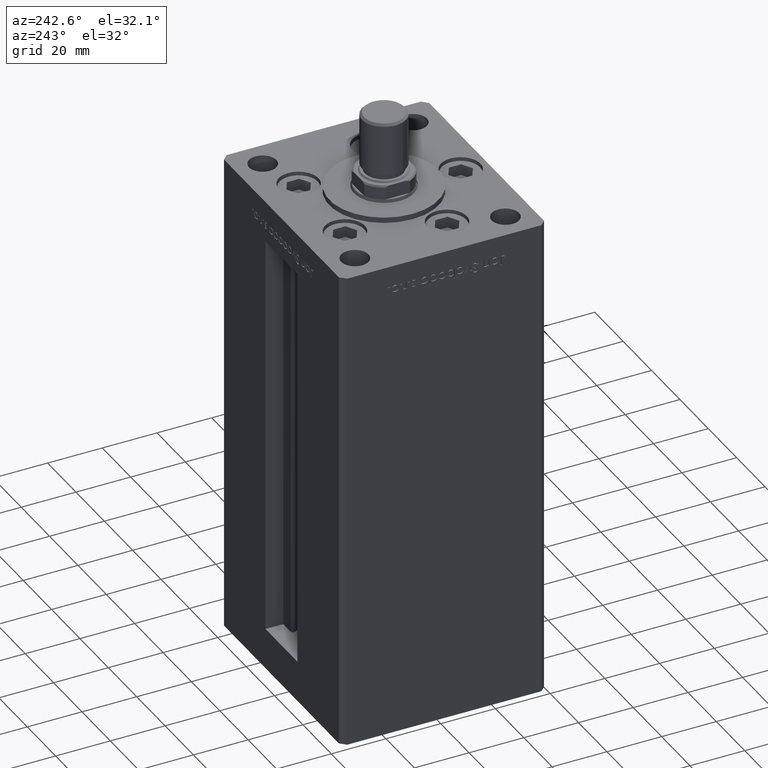
[diagram: clean part render]
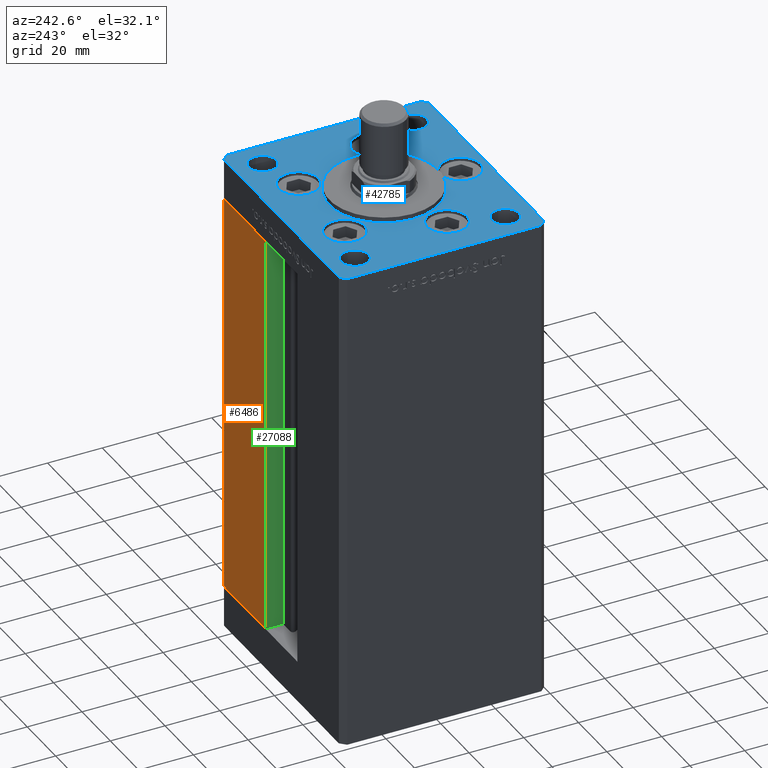
[diagram: same view with three faces highlighted in distinct colors, each labeled with its STEP entity id]
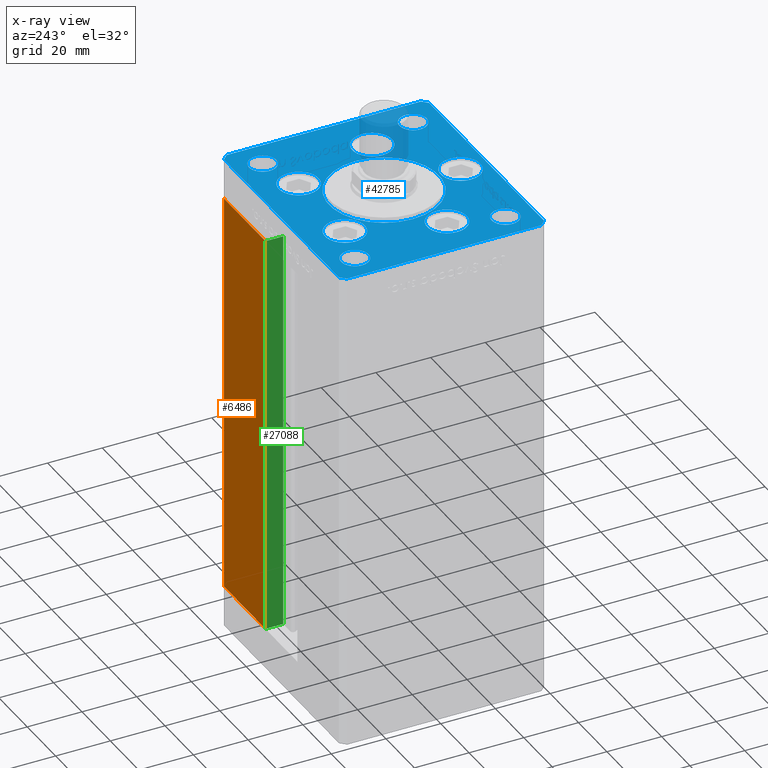
[diagram: x-ray of the same camera — body ghosted, the three highlighted faces saturated]
A machine part, auxiliary view with three faces highlighted in distinct colors.
The next image is the same camera in x-ray (body ghosted, the three faces saturated) — at least one of them is partly hidden behind the body in this view.
Their STEP definitions:

[orange] entity #6486 — the highlighted planar face has unit normal (-0, -1, 0).
#2275 = DIRECTION ( 'NONE',  ( -0.000000000000000000, -0.000000000000000000, 1.000000000000000000 ) ) ;
#4044 = EDGE_LOOP ( 'NONE', ( #22441, #31251, #8030, #20036 ) ) ;
#4202 = EDGE_CURVE ( 'NONE', #7775, #49824, #32614, .T. ) ;
#5462 = DIRECTION ( 'NONE',  ( -2.372271420139223331E-16, -1.000000000000000000, 0.000000000000000000 ) ) ;
#5682 = CARTESIAN_POINT ( 'NONE',  ( 40.50000000000000000, 37.50000000000000711, 148.5000000000000000 ) ) ;
#6486 = ADVANCED_FACE ( 'NONE', ( #13407 ), #25317, .F. ) ;
#7297 = EDGE_CURVE ( 'NONE', #24722, #7775, #32069, .T. ) ;
#7775 = VERTEX_POINT ( 'NONE', #5682 ) ;
#8030 = ORIENTED_EDGE ( 'NONE', *, *, #7297, .T. ) ;
#13055 = VERTEX_POINT ( 'NONE', #41817 ) ;
#13407 = FACE_OUTER_BOUND ( 'NONE', #4044, .T. ) ;
#13665 = DIRECTION ( 'NONE',  ( 1.000000000000000000, -2.372271420139223331E-16, 0.000000000000000000 ) ) ;
#13848 = CARTESIAN_POINT ( 'NONE',  ( 11.24999999999999289, 37.50000000000000000, 148.5000000000000000 ) ) ;
#18663 = DIRECTION ( 'NONE',  ( -1.000000000000000000, 2.372271420139223331E-16, 0.000000000000000000 ) ) ;
#20036 = ORIENTED_EDGE ( 'NONE', *, *, #4202, .T. ) ;
#22411 = CARTESIAN_POINT ( 'NONE',  ( 11.25000000000000000, 37.50000000000000000, 0.000000000000000000 ) ) ;
#22441 = ORIENTED_EDGE ( 'NONE', *, *, #26802, .T. ) ;
#24722 = VERTEX_POINT ( 'NONE', #13848 ) ;
#25317 = PLANE ( 'NONE',  #32349 ) ;
#26802 = EDGE_CURVE ( 'NONE', #49824, #13055, #34564, .T. ) ;
#27751 = VECTOR ( 'NONE', #2275, 1000.000000000000000 ) ;
#29812 = CARTESIAN_POINT ( 'NONE',  ( -11.25000000000000000, 37.50000000000000000, 148.5000000000000000 ) ) ;
#30585 = CARTESIAN_POINT ( 'NONE',  ( -11.25000000000000000, 37.50000000000000000, 0.000000000000000000 ) ) ;
#31251 = ORIENTED_EDGE ( 'NONE', *, *, #43609, .T. ) ;
#32069 = LINE ( 'NONE', #47989, #42523 ) ;
#32349 = AXIS2_PLACEMENT_3D ( 'NONE', #29812, #5462, #13665 ) ;
#32447 = VECTOR ( 'NONE', #18663, 1000.000000000000000 ) ;
#32614 = LINE ( 'NONE', #44803, #42452 ) ;
#34054 = CARTESIAN_POINT ( 'NONE',  ( 40.50000000000000000, 37.50000000000000711, 0.000000000000000000 ) ) ;
#34564 = LINE ( 'NONE', #30585, #32447 ) ;
#35524 = DIRECTION ( 'NONE',  ( 1.000000000000000000, 0.000000000000000000, 0.000000000000000000 ) ) ;
#41817 = CARTESIAN_POINT ( 'NONE',  ( 11.25000000000000000, 37.50000000000000000, 0.000000000000000000 ) ) ;
#42452 = VECTOR ( 'NONE', #45317, 1000.000000000000000 ) ;
#42523 = VECTOR ( 'NONE', #35524, 1000.000000000000000 ) ;
#42552 = LINE ( 'NONE', #22411, #27751 ) ;
#43609 = EDGE_CURVE ( 'NONE', #13055, #24722, #42552, .T. ) ;
#44803 = CARTESIAN_POINT ( 'NONE',  ( 40.50000000000000000, 37.50000000000000711, 148.5000000000000000 ) ) ;
#45317 = DIRECTION ( 'NONE',  ( -0.000000000000000000, -0.000000000000000000, -1.000000000000000000 ) ) ;
#47989 = CARTESIAN_POINT ( 'NONE',  ( -11.25000000000000000, 37.50000000000000000, 148.5000000000000000 ) ) ;
#49824 = VERTEX_POINT ( 'NONE', #34054 ) ;

[blue] entity #42785 — the highlighted planar face has unit normal (0, 0, 1).
#200 = CIRCLE ( 'NONE', #17097, 7.249999999999999112 ) ;
#381 = CARTESIAN_POINT ( 'NONE',  ( -16.32291334290544071, 22.74999999999999289, 0.000000000000000000 ) ) ;
#516 = CARTESIAN_POINT ( 'NONE',  ( 0.000000000000000000, -6.938893903907228378E-15, 0.000000000000000000 ) ) ;
#998 = VERTEX_POINT ( 'NONE', #34252 ) ;
#1085 = LINE ( 'NONE', #8524, #43696 ) ;
#1088 = VERTEX_POINT ( 'NONE', #2986 ) ;
#1139 = VERTEX_POINT ( 'NONE', #39031 ) ;
#1363 = AXIS2_PLACEMENT_3D ( 'NONE', #17106, #5182, #32752 ) ;
#1454 = CARTESIAN_POINT ( 'NONE',  ( 26.39865316429777664, -9.333333333333330373, 0.000000000000000000 ) ) ;
#1745 = PLANE ( 'NONE',  #22644 ) ;
#1771 = VERTEX_POINT ( 'NONE', #8212 ) ;
#1796 = EDGE_LOOP ( 'NONE', ( #32405, #25968 ) ) ;
#1950 = CARTESIAN_POINT ( 'NONE',  ( -23.57291334290544071, 22.74999999999999289, 0.000000000000000000 ) ) ;
#2067 = VECTOR ( 'NONE', #21119, 1000.000000000000000 ) ;
#2180 = EDGE_LOOP ( 'NONE', ( #8758, #39335 ) ) ;
#2248 = CARTESIAN_POINT ( 'NONE',  ( 32.50000000000000000, -27.50000000000000355, 0.000000000000000000 ) ) ;
#2356 = DIRECTION ( 'NONE',  ( 9.773090005503145261E-17, 1.000000000000000000, 0.000000000000000000 ) ) ;
#2363 = VERTEX_POINT ( 'NONE', #23719 ) ;
#2485 = DIRECTION ( 'NONE',  ( 1.000000000000000000, 0.000000000000000000, 0.000000000000000000 ) ) ;
#2877 = VECTOR ( 'NONE', #2356, 1000.000000000000000 ) ;
#2986 = CARTESIAN_POINT ( 'NONE',  ( 40.50000000000000711, 37.50000000000000711, 0.000000000000000000 ) ) ;
#3306 = DIRECTION ( 'NONE',  ( -0.000000000000000000, -0.000000000000000000, -1.000000000000000000 ) ) ;
#3789 = AXIS2_PLACEMENT_3D ( 'NONE', #7463, #51989, #7725 ) ;
#3834 = CARTESIAN_POINT ( 'NONE',  ( -32.50000000000000000, 27.50000000000000711, 0.000000000000000000 ) ) ;
#3999 = EDGE_CURVE ( 'NONE', #51469, #2363, #33967, .T. ) ;
#5182 = DIRECTION ( 'NONE',  ( 0.000000000000000000, 0.000000000000000000, 1.000000000000000000 ) ) ;
#5626 = ORIENTED_EDGE ( 'NONE', *, *, #7641, .F. ) ;
#5695 = CARTESIAN_POINT ( 'NONE',  ( -20.00000000000000000, -6.938893903907228378E-15, 0.000000000000000000 ) ) ;
#5984 = FACE_BOUND ( 'NONE', #36809, .T. ) ;
#6230 = DIRECTION ( 'NONE',  ( -0.000000000000000000, -0.000000000000000000, -1.000000000000000000 ) ) ;
#6309 = CARTESIAN_POINT ( 'NONE',  ( -19.14865316429777664, -9.333333333333330373, 0.000000000000000000 ) ) ;
#6428 = EDGE_CURVE ( 'NONE', #1771, #29727, #200, .T. ) ;
#6498 = DIRECTION ( 'NONE',  ( -1.000000000000000000, 0.000000000000000000, 0.000000000000000000 ) ) ;
#6512 = CARTESIAN_POINT ( 'NONE',  ( 0.000000000000000000, -28.00000000000000000, 0.000000000000000000 ) ) ;
#6874 = CARTESIAN_POINT ( 'NONE',  ( -27.50000000000000000, -27.50000000000000355, 0.000000000000000000 ) ) ;
#7203 = AXIS2_PLACEMENT_3D ( 'NONE', #30839, #10190, #2485 ) ;
#7463 = CARTESIAN_POINT ( 'NONE',  ( -26.39865316429777664, -9.333333333333330373, 0.000000000000000000 ) ) ;
#7641 = EDGE_CURVE ( 'NONE', #12027, #44356, #42555, .T. ) ;
#7725 = DIRECTION ( 'NONE',  ( 1.000000000000000000, 0.000000000000000000, 0.000000000000000000 ) ) ;
#8141 = CIRCLE ( 'NONE', #1363, 4.999999999999997335 ) ;
#8210 = EDGE_LOOP ( 'NONE', ( #30578, #50679 ) ) ;
#8212 = CARTESIAN_POINT ( 'NONE',  ( 23.57291334290544071, 22.74999999999999289, 0.000000000000000000 ) ) ;
#8334 = DIRECTION ( 'NONE',  ( 0.000000000000000000, 0.000000000000000000, 1.000000000000000000 ) ) ;
#8381 = CARTESIAN_POINT ( 'NONE',  ( 42.50000000000001421, 35.50000000000002132, 0.000000000000000000 ) ) ;
#8438 = EDGE_CURVE ( 'NONE', #39603, #36398, #40241, .T. ) ;
#8524 = CARTESIAN_POINT ( 'NONE',  ( 40.50000000000001421, -37.49999999999992184, 0.000000000000000000 ) ) ;
#8758 = ORIENTED_EDGE ( 'NONE', *, *, #40554, .F. ) ;
#8939 = LINE ( 'NONE', #49481, #15630 ) ;
#9151 = EDGE_LOOP ( 'NONE', ( #51401, #45392 ) ) ;
#9294 = VERTEX_POINT ( 'NONE', #43168 ) ;
#9590 = DIRECTION ( 'NONE',  ( 1.000000000000000000, 0.000000000000000000, 0.000000000000000000 ) ) ;
#9748 = ORIENTED_EDGE ( 'NONE', *, *, #21694, .T. ) ;
#9881 = AXIS2_PLACEMENT_3D ( 'NONE', #516, #16665, #49003 ) ;
#9978 = AXIS2_PLACEMENT_3D ( 'NONE', #29199, #49617, #9590 ) ;
#10190 = DIRECTION ( 'NONE',  ( 0.000000000000000000, 0.000000000000000000, 1.000000000000000000 ) ) ;
#10850 = CARTESIAN_POINT ( 'NONE',  ( -42.50000000000000711, 35.50000000000000000, 0.000000000000000000 ) ) ;
#10860 = CARTESIAN_POINT ( 'NONE',  ( 40.50000000000001421, -37.49999999999992184, 0.000000000000000000 ) ) ;
#11193 = DIRECTION ( 'NONE',  ( -1.000000000000000000, 0.000000000000000000, 0.000000000000000000 ) ) ;
#11308 = ORIENTED_EDGE ( 'NONE', *, *, #8438, .T. ) ;
#11312 = CARTESIAN_POINT ( 'NONE',  ( -7.250000000000000000, -28.00000000000000000, 0.000000000000000000 ) ) ;
#11697 = EDGE_CURVE ( 'NONE', #22509, #25471, #47157, .T. ) ;
#11707 = CARTESIAN_POINT ( 'NONE',  ( -27.50000000000000000, 27.50000000000000711, 0.000000000000000000 ) ) ;
#11936 = CARTESIAN_POINT ( 'NONE',  ( 7.250000000000000000, -28.00000000000000000, 0.000000000000000000 ) ) ;
#11969 = DIRECTION ( 'NONE',  ( 1.000000000000000000, 0.000000000000000000, 0.000000000000000000 ) ) ;
#11988 = ORIENTED_EDGE ( 'NONE', *, *, #49820, .F. ) ;
#12005 = ORIENTED_EDGE ( 'NONE', *, *, #50111, .T. ) ;
#12027 = VERTEX_POINT ( 'NONE', #17939 ) ;
#12493 = ORIENTED_EDGE ( 'NONE', *, *, #17836, .F. ) ;
#12599 = VERTEX_POINT ( 'NONE', #15228 ) ;
#13046 = VERTEX_POINT ( 'NONE', #6309 ) ;
#13057 = CIRCLE ( 'NONE', #7203, 7.249999999999999112 ) ;
#13135 = CARTESIAN_POINT ( 'NONE',  ( 27.50000000000000355, -27.50000000000000355, 0.000000000000000000 ) ) ;
#13224 = CARTESIAN_POINT ( 'NONE',  ( 40.50000000000000711, 37.50000000000000711, 0.000000000000000000 ) ) ;
#13652 = EDGE_CURVE ( 'NONE', #21371, #22661, #23239, .T. ) ;
#13766 = CARTESIAN_POINT ( 'NONE',  ( 42.50000000000000711, -35.49999999999992895, 0.000000000000000000 ) ) ;
#14090 = CARTESIAN_POINT ( 'NONE',  ( -40.50000000000000711, -37.50000000000003553, 0.000000000000000000 ) ) ;
#14111 = AXIS2_PLACEMENT_3D ( 'NONE', #49916, #21280, #29497 ) ;
#14196 = FACE_OUTER_BOUND ( 'NONE', #23371, .T. ) ;
#15210 = DIRECTION ( 'NONE',  ( 0.000000000000000000, 0.000000000000000000, 1.000000000000000000 ) ) ;
#15228 = CARTESIAN_POINT ( 'NONE',  ( -37.50000000000000711, 27.50000000000000711, 0.000000000000000000 ) ) ;
#15630 = VECTOR ( 'NONE', #21647, 1000.000000000000000 ) ;
#15816 = CIRCLE ( 'NONE', #9881, 20.00000000000000000 ) ;
#16022 = DIRECTION ( 'NONE',  ( -0.000000000000000000, -0.000000000000000000, -1.000000000000000000 ) ) ;
#16176 = EDGE_LOOP ( 'NONE', ( #42643, #18393 ) ) ;
#16198 = ORIENTED_EDGE ( 'NONE', *, *, #11697, .T. ) ;
#16518 = ORIENTED_EDGE ( 'NONE', *, *, #25653, .T. ) ;
#16559 = DIRECTION ( 'NONE',  ( 1.000000000000000000, 0.000000000000000000, 0.000000000000000000 ) ) ;
#16665 = DIRECTION ( 'NONE',  ( 0.000000000000000000, 0.000000000000000000, 1.000000000000000000 ) ) ;
#16806 = DIRECTION ( 'NONE',  ( 1.000000000000000000, 0.000000000000000000, 0.000000000000000000 ) ) ;
#17097 = AXIS2_PLACEMENT_3D ( 'NONE', #20308, #24544, #45470 ) ;
#17106 = CARTESIAN_POINT ( 'NONE',  ( 32.50000000000000000, 27.49999999999999645, 0.000000000000000000 ) ) ;
#17246 = DIRECTION ( 'NONE',  ( 0.7071067811865474617, 0.7071067811865474617, 0.000000000000000000 ) ) ;
#17290 = CARTESIAN_POINT ( 'NONE',  ( -42.50000000000000000, -35.50000000000004263, 0.000000000000000000 ) ) ;
#17521 = EDGE_CURVE ( 'NONE', #25471, #1088, #8939, .T. ) ;
#17610 = DIRECTION ( 'NONE',  ( 0.000000000000000000, 0.000000000000000000, 1.000000000000000000 ) ) ;
#17836 = EDGE_CURVE ( 'NONE', #2363, #51469, #31698, .T. ) ;
#17930 = EDGE_CURVE ( 'NONE', #13046, #34501, #13057, .T. ) ;
#17939 = CARTESIAN_POINT ( 'NONE',  ( 37.50000000000000000, 27.49999999999999645, 0.000000000000000000 ) ) ;
#18165 = FACE_BOUND ( 'NONE', #2180, .T. ) ;
#18190 = VERTEX_POINT ( 'NONE', #17290 ) ;
#18393 = ORIENTED_EDGE ( 'NONE', *, *, #19016, .F. ) ;
#18531 = EDGE_LOOP ( 'NONE', ( #5626, #46844 ) ) ;
#18655 = CARTESIAN_POINT ( 'NONE',  ( -32.50000000000000000, -27.50000000000000355, 0.000000000000000000 ) ) ;
#18819 = EDGE_CURVE ( 'NONE', #35295, #44625, #19860, .T. ) ;
#19016 = EDGE_CURVE ( 'NONE', #34501, #13046, #47836, .T. ) ;
#19114 = CARTESIAN_POINT ( 'NONE',  ( -9.072913342905442491, 22.74999999999999289, 0.000000000000000000 ) ) ;
#19505 = DIRECTION ( 'NONE',  ( 0.000000000000000000, 0.000000000000000000, 1.000000000000000000 ) ) ;
#19860 = CIRCLE ( 'NONE', #25787, 7.250000000000000000 ) ;
#20014 = CARTESIAN_POINT ( 'NONE',  ( 32.50000000000000000, 27.49999999999999645, 0.000000000000000000 ) ) ;
#20308 = CARTESIAN_POINT ( 'NONE',  ( 16.32291334290544071, 22.74999999999999289, 0.000000000000000000 ) ) ;
#20527 = CARTESIAN_POINT ( 'NONE',  ( 26.39865316429777664, -9.333333333333330373, 0.000000000000000000 ) ) ;
#20813 = EDGE_LOOP ( 'NONE', ( #16518, #12005 ) ) ;
#21006 = CIRCLE ( 'NONE', #21122, 5.000000000000004441 ) ;
#21119 = DIRECTION ( 'NONE',  ( 0.7071067811865487940, -0.7071067811865463515, 0.000000000000000000 ) ) ;
#21122 = AXIS2_PLACEMENT_3D ( 'NONE', #3834, #3306, #27952 ) ;
#21280 = DIRECTION ( 'NONE',  ( 0.000000000000000000, 0.000000000000000000, 1.000000000000000000 ) ) ;
#21365 = AXIS2_PLACEMENT_3D ( 'NONE', #20014, #48119, #16806 ) ;
#21371 = VERTEX_POINT ( 'NONE', #1950 ) ;
#21634 = VECTOR ( 'NONE', #33697, 1000.000000000000000 ) ;
#21647 = DIRECTION ( 'NONE',  ( -0.7071067811865524577, 0.7071067811865426878, 0.000000000000000000 ) ) ;
#21694 = EDGE_CURVE ( 'NONE', #1139, #24263, #26002, .T. ) ;
#22139 = FACE_BOUND ( 'NONE', #18531, .T. ) ;
#22509 = VERTEX_POINT ( 'NONE', #25487 ) ;
#22644 = AXIS2_PLACEMENT_3D ( 'NONE', #30343, #42545, #46798 ) ;
#22661 = VERTEX_POINT ( 'NONE', #19114 ) ;
#23022 = LINE ( 'NONE', #10850, #42707 ) ;
#23235 = AXIS2_PLACEMENT_3D ( 'NONE', #1454, #17610, #41987 ) ;
#23239 = CIRCLE ( 'NONE', #24923, 7.249999999999999112 ) ;
#23371 = EDGE_LOOP ( 'NONE', ( #25281, #9748, #50894, #16198, #40702, #26329, #11308, #34810 ) ) ;
#23495 = CARTESIAN_POINT ( 'NONE',  ( 0.000000000000000000, -28.00000000000000000, 0.000000000000000000 ) ) ;
#23701 = VERTEX_POINT ( 'NONE', #5695 ) ;
#23719 = CARTESIAN_POINT ( 'NONE',  ( 19.14865316429777664, -9.333333333333328596, 0.000000000000000000 ) ) ;
#24091 = VERTEX_POINT ( 'NONE', #11707 ) ;
#24263 = VERTEX_POINT ( 'NONE', #10860 ) ;
#24287 = VERTEX_POINT ( 'NONE', #6874 ) ;
#24544 = DIRECTION ( 'NONE',  ( 0.000000000000000000, 0.000000000000000000, 1.000000000000000000 ) ) ;
#24631 = VERTEX_POINT ( 'NONE', #40121 ) ;
#24923 = AXIS2_PLACEMENT_3D ( 'NONE', #381, #8334, #36427 ) ;
#25281 = ORIENTED_EDGE ( 'NONE', *, *, #34386, .T. ) ;
#25354 = CARTESIAN_POINT ( 'NONE',  ( -42.50000000000000000, -35.50000000000004263, 0.000000000000000000 ) ) ;
#25471 = VERTEX_POINT ( 'NONE', #8381 ) ;
#25481 = ORIENTED_EDGE ( 'NONE', *, *, #37731, .T. ) ;
#25487 = CARTESIAN_POINT ( 'NONE',  ( 42.50000000000000711, -35.49999999999992895, 0.000000000000000000 ) ) ;
#25653 = EDGE_CURVE ( 'NONE', #9294, #26604, #31579, .T. ) ;
#25731 = CARTESIAN_POINT ( 'NONE',  ( 33.64865316429777664, -9.333333333333330373, 0.000000000000000000 ) ) ;
#25787 = AXIS2_PLACEMENT_3D ( 'NONE', #23495, #19505, #47360 ) ;
#25949 = EDGE_CURVE ( 'NONE', #24287, #998, #48510, .T. ) ;
#25968 = ORIENTED_EDGE ( 'NONE', *, *, #44038, .F. ) ;
#26002 = LINE ( 'NONE', #14090, #21634 ) ;
#26323 = AXIS2_PLACEMENT_3D ( 'NONE', #20527, #36708, #16559 ) ;
#26329 = ORIENTED_EDGE ( 'NONE', *, *, #42524, .T. ) ;
#26371 = FACE_BOUND ( 'NONE', #9151, .T. ) ;
#26457 = DIRECTION ( 'NONE',  ( 9.773090005503134168E-17, -1.000000000000000000, 0.000000000000000000 ) ) ;
#26604 = VERTEX_POINT ( 'NONE', #13135 ) ;
#26695 = CIRCLE ( 'NONE', #48733, 5.000000000000004441 ) ;
#27315 = VECTOR ( 'NONE', #44207, 1000.000000000000000 ) ;
#27720 = VECTOR ( 'NONE', #37594, 1000.000000000000000 ) ;
#27952 = DIRECTION ( 'NONE',  ( -1.000000000000000000, 0.000000000000000000, 0.000000000000000000 ) ) ;
#28444 = ORIENTED_EDGE ( 'NONE', *, *, #49913, .T. ) ;
#28801 = CARTESIAN_POINT ( 'NONE',  ( 9.072913342905442491, 22.74999999999999289, 0.000000000000000000 ) ) ;
#29199 = CARTESIAN_POINT ( 'NONE',  ( 16.32291334290544071, 22.74999999999999289, 0.000000000000000000 ) ) ;
#29497 = DIRECTION ( 'NONE',  ( 1.000000000000000000, 0.000000000000000000, 0.000000000000000000 ) ) ;
#29727 = VERTEX_POINT ( 'NONE', #28801 ) ;
#30112 = CARTESIAN_POINT ( 'NONE',  ( -33.64865316429777664, -9.333333333333328596, 0.000000000000000000 ) ) ;
#30335 = CARTESIAN_POINT ( 'NONE',  ( -40.50000000000000000, 37.49999999999997158, 0.000000000000000000 ) ) ;
#30343 = CARTESIAN_POINT ( 'NONE',  ( 0.000000000000000000, 0.000000000000000000, 0.000000000000000000 ) ) ;
#30578 = ORIENTED_EDGE ( 'NONE', *, *, #25949, .F. ) ;
#30839 = CARTESIAN_POINT ( 'NONE',  ( -26.39865316429777664, -9.333333333333330373, 0.000000000000000000 ) ) ;
#31579 = CIRCLE ( 'NONE', #46802, 4.999999999999997335 ) ;
#31698 = CIRCLE ( 'NONE', #23235, 7.249999999999999112 ) ;
#32187 = DIRECTION ( 'NONE',  ( -1.000000000000000000, 0.000000000000000000, 0.000000000000000000 ) ) ;
#32352 = DIRECTION ( 'NONE',  ( 0.000000000000000000, 0.000000000000000000, 1.000000000000000000 ) ) ;
#32405 = ORIENTED_EDGE ( 'NONE', *, *, #6428, .F. ) ;
#32605 = CIRCLE ( 'NONE', #39382, 5.000000000000000888 ) ;
#32752 = DIRECTION ( 'NONE',  ( 1.000000000000000000, 0.000000000000000000, 0.000000000000000000 ) ) ;
#33339 = LINE ( 'NONE', #13224, #27720 ) ;
#33612 = CIRCLE ( 'NONE', #51421, 20.00000000000000000 ) ;
#33631 = CARTESIAN_POINT ( 'NONE',  ( 27.50000000000000355, 27.49999999999999645, 0.000000000000000000 ) ) ;
#33697 = DIRECTION ( 'NONE',  ( 1.000000000000000000, 1.370645709413773283E-15, 0.000000000000000000 ) ) ;
#33967 = CIRCLE ( 'NONE', #26323, 7.249999999999999112 ) ;
#34058 = FACE_BOUND ( 'NONE', #45049, .T. ) ;
#34197 = EDGE_CURVE ( 'NONE', #36398, #18190, #23022, .T. ) ;
#34252 = CARTESIAN_POINT ( 'NONE',  ( -37.50000000000000711, -27.50000000000000355, 0.000000000000000000 ) ) ;
#34386 = EDGE_CURVE ( 'NONE', #18190, #1139, #49492, .T. ) ;
#34501 = VERTEX_POINT ( 'NONE', #30112 ) ;
#34810 = ORIENTED_EDGE ( 'NONE', *, *, #34197, .T. ) ;
#34818 = DIRECTION ( 'NONE',  ( 1.000000000000000000, 0.000000000000000000, 0.000000000000000000 ) ) ;
#35193 = DIRECTION ( 'NONE',  ( 0.000000000000000000, 0.000000000000000000, 1.000000000000000000 ) ) ;
#35295 = VERTEX_POINT ( 'NONE', #11312 ) ;
#36398 = VERTEX_POINT ( 'NONE', #41209 ) ;
#36427 = DIRECTION ( 'NONE',  ( 1.000000000000000000, 0.000000000000000000, 0.000000000000000000 ) ) ;
#36428 = CARTESIAN_POINT ( 'NONE',  ( 32.50000000000000000, -27.50000000000000355, 0.000000000000000000 ) ) ;
#36602 = EDGE_CURVE ( 'NONE', #998, #24287, #32605, .T. ) ;
#36708 = DIRECTION ( 'NONE',  ( 0.000000000000000000, 0.000000000000000000, 1.000000000000000000 ) ) ;
#36809 = EDGE_LOOP ( 'NONE', ( #25481, #28444 ) ) ;
#37594 = DIRECTION ( 'NONE',  ( -1.000000000000000000, -4.283267841918041508E-16, 0.000000000000000000 ) ) ;
#37731 = EDGE_CURVE ( 'NONE', #24091, #12599, #26695, .T. ) ;
#38056 = FACE_BOUND ( 'NONE', #39929, .T. ) ;
#38575 = DIRECTION ( 'NONE',  ( 1.000000000000000000, 0.000000000000000000, 0.000000000000000000 ) ) ;
#38613 = EDGE_CURVE ( 'NONE', #44356, #12027, #8141, .T. ) ;
#38921 = AXIS2_PLACEMENT_3D ( 'NONE', #6512, #50766, #38575 ) ;
#39031 = CARTESIAN_POINT ( 'NONE',  ( -40.50000000000000711, -37.50000000000003553, 0.000000000000000000 ) ) ;
#39260 = EDGE_CURVE ( 'NONE', #24263, #22509, #1085, .T. ) ;
#39279 = CARTESIAN_POINT ( 'NONE',  ( -32.50000000000000000, 27.50000000000000711, 0.000000000000000000 ) ) ;
#39335 = ORIENTED_EDGE ( 'NONE', *, *, #42662, .F. ) ;
#39382 = AXIS2_PLACEMENT_3D ( 'NONE', #18655, #15210, #34818 ) ;
#39490 = CIRCLE ( 'NONE', #14111, 7.249999999999999112 ) ;
#39603 = VERTEX_POINT ( 'NONE', #30335 ) ;
#39849 = EDGE_CURVE ( 'NONE', #22661, #21371, #39490, .T. ) ;
#39929 = EDGE_LOOP ( 'NONE', ( #11988, #47216 ) ) ;
#39947 = CARTESIAN_POINT ( 'NONE',  ( 0.000000000000000000, -6.938893903907228378E-15, 0.000000000000000000 ) ) ;
#40121 = CARTESIAN_POINT ( 'NONE',  ( 20.00000000000000000, -4.489600305612522259E-15, 0.000000000000000000 ) ) ;
#40241 = LINE ( 'NONE', #47414, #27315 ) ;
#40554 = EDGE_CURVE ( 'NONE', #23701, #24631, #15816, .T. ) ;
#40702 = ORIENTED_EDGE ( 'NONE', *, *, #17521, .T. ) ;
#41209 = CARTESIAN_POINT ( 'NONE',  ( -42.50000000000000711, 35.50000000000000000, 0.000000000000000000 ) ) ;
#41499 = FACE_BOUND ( 'NONE', #8210, .T. ) ;
#41987 = DIRECTION ( 'NONE',  ( 1.000000000000000000, 0.000000000000000000, 0.000000000000000000 ) ) ;
#42276 = AXIS2_PLACEMENT_3D ( 'NONE', #36428, #16022, #32187 ) ;
#42287 = FACE_BOUND ( 'NONE', #16176, .T. ) ;
#42524 = EDGE_CURVE ( 'NONE', #1088, #39603, #33339, .T. ) ;
#42545 = DIRECTION ( 'NONE',  ( -0.000000000000000000, 0.000000000000000000, 1.000000000000000000 ) ) ;
#42555 = CIRCLE ( 'NONE', #21365, 4.999999999999997335 ) ;
#42643 = ORIENTED_EDGE ( 'NONE', *, *, #17930, .F. ) ;
#42662 = EDGE_CURVE ( 'NONE', #24631, #23701, #33612, .T. ) ;
#42707 = VECTOR ( 'NONE', #26457, 1000.000000000000000 ) ;
#42785 = ADVANCED_FACE ( 'NONE', ( #18165, #26371, #46276, #34058, #38056, #42287, #5984, #22139, #41499, #14196, #50770 ), #1745, .T. ) ;
#43168 = CARTESIAN_POINT ( 'NONE',  ( 37.50000000000000000, -27.50000000000000355, 0.000000000000000000 ) ) ;
#43423 = AXIS2_PLACEMENT_3D ( 'NONE', #48274, #32352, #11969 ) ;
#43696 = VECTOR ( 'NONE', #17246, 1000.000000000000114 ) ;
#43868 = CIRCLE ( 'NONE', #38921, 7.250000000000000000 ) ;
#44038 = EDGE_CURVE ( 'NONE', #29727, #1771, #44671, .T. ) ;
#44207 = DIRECTION ( 'NONE',  ( -0.7071067811865536790, -0.7071067811865414665, 0.000000000000000000 ) ) ;
#44356 = VERTEX_POINT ( 'NONE', #33631 ) ;
#44625 = VERTEX_POINT ( 'NONE', #11936 ) ;
#44671 = CIRCLE ( 'NONE', #9978, 7.249999999999999112 ) ;
#45049 = EDGE_LOOP ( 'NONE', ( #46944, #12493 ) ) ;
#45392 = ORIENTED_EDGE ( 'NONE', *, *, #13652, .F. ) ;
#45470 = DIRECTION ( 'NONE',  ( 1.000000000000000000, 0.000000000000000000, 0.000000000000000000 ) ) ;
#46276 = FACE_BOUND ( 'NONE', #1796, .T. ) ;
#46798 = DIRECTION ( 'NONE',  ( 1.000000000000000000, 0.000000000000000000, 0.000000000000000000 ) ) ;
#46802 = AXIS2_PLACEMENT_3D ( 'NONE', #2248, #6230, #6498 ) ;
#46844 = ORIENTED_EDGE ( 'NONE', *, *, #38613, .F. ) ;
#46944 = ORIENTED_EDGE ( 'NONE', *, *, #3999, .F. ) ;
#47157 = LINE ( 'NONE', #13766, #2877 ) ;
#47216 = ORIENTED_EDGE ( 'NONE', *, *, #18819, .F. ) ;
#47360 = DIRECTION ( 'NONE',  ( 1.000000000000000000, 0.000000000000000000, 0.000000000000000000 ) ) ;
#47414 = CARTESIAN_POINT ( 'NONE',  ( -40.50000000000000000, 37.49999999999997158, 0.000000000000000000 ) ) ;
#47502 = DIRECTION ( 'NONE',  ( -0.000000000000000000, -0.000000000000000000, -1.000000000000000000 ) ) ;
#47836 = CIRCLE ( 'NONE', #3789, 7.249999999999999112 ) ;
#48119 = DIRECTION ( 'NONE',  ( 0.000000000000000000, 0.000000000000000000, 1.000000000000000000 ) ) ;
#48274 = CARTESIAN_POINT ( 'NONE',  ( -32.50000000000000000, -27.50000000000000355, 0.000000000000000000 ) ) ;
#48510 = CIRCLE ( 'NONE', #43423, 5.000000000000000888 ) ;
#48733 = AXIS2_PLACEMENT_3D ( 'NONE', #39279, #47502, #11193 ) ;
#49003 = DIRECTION ( 'NONE',  ( 1.000000000000000000, 0.000000000000000000, 0.000000000000000000 ) ) ;
#49481 = CARTESIAN_POINT ( 'NONE',  ( 42.50000000000001421, 35.50000000000002132, 0.000000000000000000 ) ) ;
#49492 = LINE ( 'NONE', #25354, #2067 ) ;
#49617 = DIRECTION ( 'NONE',  ( 0.000000000000000000, 0.000000000000000000, 1.000000000000000000 ) ) ;
#49820 = EDGE_CURVE ( 'NONE', #44625, #35295, #43868, .T. ) ;
#49913 = EDGE_CURVE ( 'NONE', #12599, #24091, #21006, .T. ) ;
#49916 = CARTESIAN_POINT ( 'NONE',  ( -16.32291334290544071, 22.74999999999999289, 0.000000000000000000 ) ) ;
#50111 = EDGE_CURVE ( 'NONE', #26604, #9294, #50760, .T. ) ;
#50679 = ORIENTED_EDGE ( 'NONE', *, *, #36602, .F. ) ;
#50760 = CIRCLE ( 'NONE', #42276, 4.999999999999997335 ) ;
#50766 = DIRECTION ( 'NONE',  ( 0.000000000000000000, 0.000000000000000000, 1.000000000000000000 ) ) ;
#50770 = FACE_BOUND ( 'NONE', #20813, .T. ) ;
#50894 = ORIENTED_EDGE ( 'NONE', *, *, #39260, .T. ) ;
#51401 = ORIENTED_EDGE ( 'NONE', *, *, #39849, .F. ) ;
#51421 = AXIS2_PLACEMENT_3D ( 'NONE', #39947, #35193, #51881 ) ;
#51469 = VERTEX_POINT ( 'NONE', #25731 ) ;
#51881 = DIRECTION ( 'NONE',  ( 1.000000000000000000, 0.000000000000000000, 0.000000000000000000 ) ) ;
#51989 = DIRECTION ( 'NONE',  ( 0.000000000000000000, 0.000000000000000000, 1.000000000000000000 ) ) ;

[green] entity #27088 — the highlighted planar face has unit normal (1, 0, 0).
#778 = CARTESIAN_POINT ( 'NONE',  ( 11.25000000000000000, 30.99999999999999289, 0.000000000000000000 ) ) ;
#1145 = DIRECTION ( 'NONE',  ( -0.000000000000000000, -1.000000000000000000, 0.000000000000000000 ) ) ;
#2275 = DIRECTION ( 'NONE',  ( -0.000000000000000000, -0.000000000000000000, 1.000000000000000000 ) ) ;
#2833 = LINE ( 'NONE', #51353, #45123 ) ;
#3424 = PLANE ( 'NONE',  #41752 ) ;
#3952 = DIRECTION ( 'NONE',  ( 0.000000000000000000, 0.000000000000000000, -1.000000000000000000 ) ) ;
#5904 = CARTESIAN_POINT ( 'NONE',  ( 11.25000000000000000, 0.000000000000000000, 148.5000000000000000 ) ) ;
#6565 = DIRECTION ( 'NONE',  ( -0.000000000000000000, -0.000000000000000000, 1.000000000000000000 ) ) ;
#7693 = DIRECTION ( 'NONE',  ( 0.000000000000000000, 1.000000000000000000, 0.000000000000000000 ) ) ;
#12001 = CARTESIAN_POINT ( 'NONE',  ( 11.25000000000000000, 30.99999999999999289, 0.000000000000000000 ) ) ;
#12439 = DIRECTION ( 'NONE',  ( 1.000000000000000000, -0.000000000000000000, 0.000000000000000000 ) ) ;
#13055 = VERTEX_POINT ( 'NONE', #41817 ) ;
#13848 = CARTESIAN_POINT ( 'NONE',  ( 11.24999999999999289, 37.50000000000000000, 148.5000000000000000 ) ) ;
#14752 = VECTOR ( 'NONE', #7693, 1000.000000000000000 ) ;
#19905 = VECTOR ( 'NONE', #1145, 1000.000000000000000 ) ;
#20099 = EDGE_CURVE ( 'NONE', #24722, #40257, #25506, .T. ) ;
#20287 = EDGE_LOOP ( 'NONE', ( #43169, #41610, #52131, #32216 ) ) ;
#20371 = FACE_OUTER_BOUND ( 'NONE', #20287, .T. ) ;
#20714 = VERTEX_POINT ( 'NONE', #12001 ) ;
#22411 = CARTESIAN_POINT ( 'NONE',  ( 11.25000000000000000, 37.50000000000000000, 0.000000000000000000 ) ) ;
#24722 = VERTEX_POINT ( 'NONE', #13848 ) ;
#25384 = EDGE_CURVE ( 'NONE', #20714, #40257, #2833, .T. ) ;
#25506 = LINE ( 'NONE', #5904, #19905 ) ;
#27088 = ADVANCED_FACE ( 'NONE', ( #20371 ), #3424, .F. ) ;
#27751 = VECTOR ( 'NONE', #2275, 1000.000000000000000 ) ;
#32216 = ORIENTED_EDGE ( 'NONE', *, *, #20099, .F. ) ;
#32562 = CARTESIAN_POINT ( 'NONE',  ( 11.25000000000000000, 30.99999999999999289, 0.000000000000000000 ) ) ;
#33458 = EDGE_CURVE ( 'NONE', #20714, #13055, #52224, .T. ) ;
#40257 = VERTEX_POINT ( 'NONE', #46143 ) ;
#41610 = ORIENTED_EDGE ( 'NONE', *, *, #33458, .F. ) ;
#41752 = AXIS2_PLACEMENT_3D ( 'NONE', #32562, #12439, #3952 ) ;
#41817 = CARTESIAN_POINT ( 'NONE',  ( 11.25000000000000000, 37.50000000000000000, 0.000000000000000000 ) ) ;
#42552 = LINE ( 'NONE', #22411, #27751 ) ;
#43169 = ORIENTED_EDGE ( 'NONE', *, *, #43609, .F. ) ;
#43609 = EDGE_CURVE ( 'NONE', #13055, #24722, #42552, .T. ) ;
#45123 = VECTOR ( 'NONE', #6565, 1000.000000000000000 ) ;
#46143 = CARTESIAN_POINT ( 'NONE',  ( 11.25000000000000000, 30.99999999999999289, 148.5000000000000000 ) ) ;
#51353 = CARTESIAN_POINT ( 'NONE',  ( 11.25000000000000000, 30.99999999999999289, 0.000000000000000000 ) ) ;
#52131 = ORIENTED_EDGE ( 'NONE', *, *, #25384, .T. ) ;
#52224 = LINE ( 'NONE', #778, #14752 ) ;